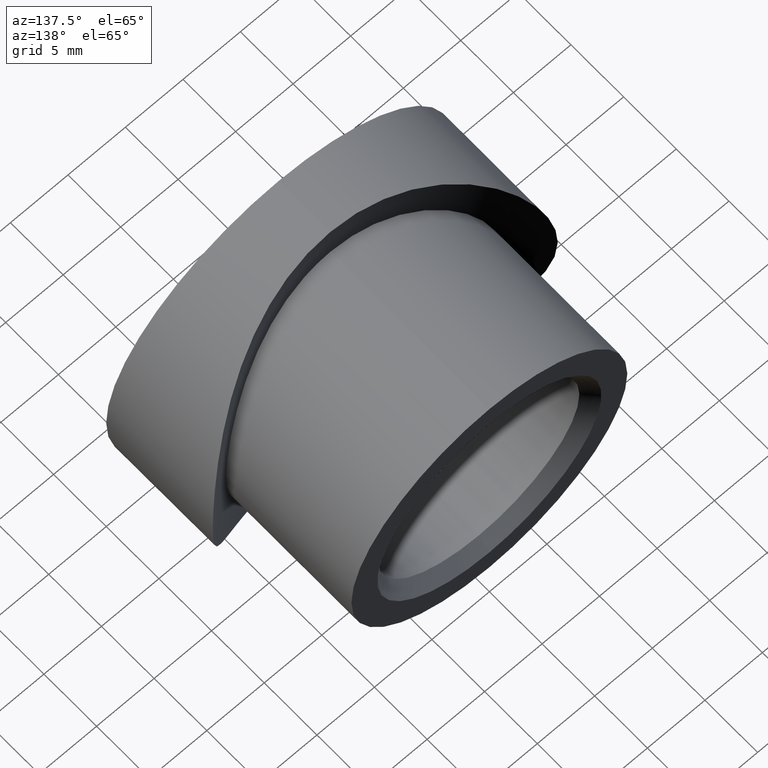
[diagram: clean part render]
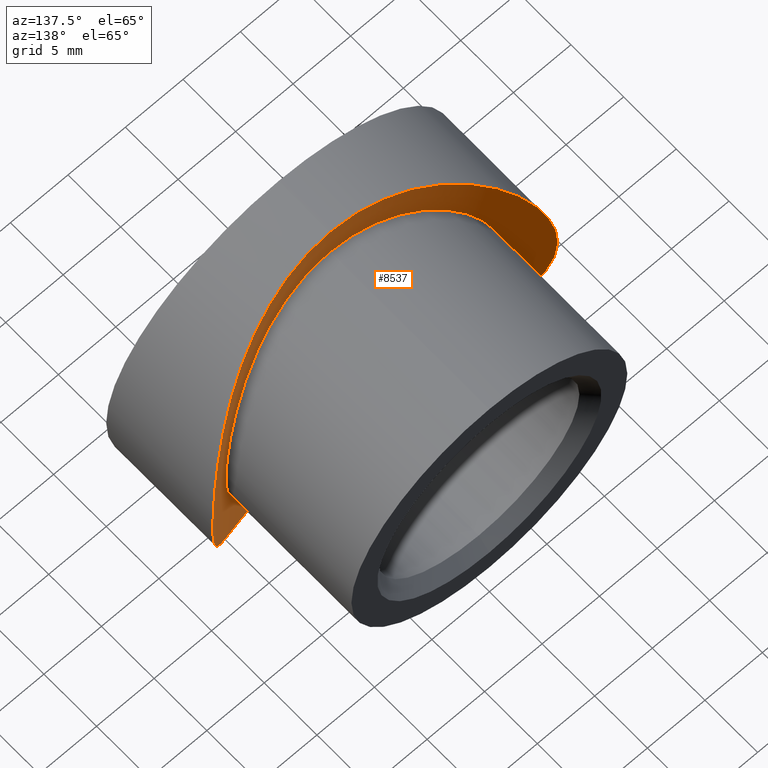
[diagram: same view with one face highlighted and labeled with its STEP entity id]
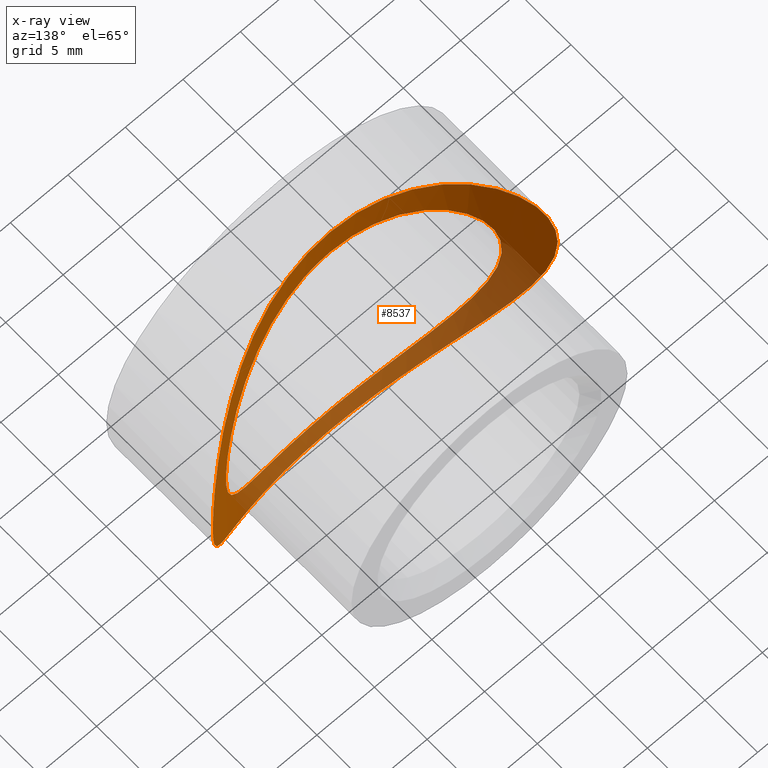
[diagram: x-ray of the same camera — body ghosted, the highlighted face saturated]
A machine part, auxiliary view. The second image highlights one B-rep face of the part: STEP entity #8537.
The next image is the same camera in x-ray: the body ghosted, the highlighted face saturated — about 40% of this face is hidden behind the body in this view.
In plain terms, the highlighted cylindrical surface (partial cylindrical patch) has radius 24.15 mm, axis along (-0, -0, 1).
Its self-contained STEP definition (entity closure, byte-faithful):
#94 = CARTESIAN_POINT ( 'NONE',  ( -6.744688744990575900, 5.856562353914894100, -13.40709561244847800 ) ) ;
#112 = CARTESIAN_POINT ( 'NONE',  ( -1.597987281760672600, 4.949587880154465000, 11.89994046274387100 ) ) ;
#144 = CARTESIAN_POINT ( 'NONE',  ( -12.71327052175960000, 8.514851390136264800, -7.975061641544691300 ) ) ;
#195 = CARTESIAN_POINT ( 'NONE',  ( -3.485658601142082300, 5.147729191260269800, 14.59802432777151700 ) ) ;
#212 = CARTESIAN_POINT ( 'NONE',  ( -7.336366037461537800, 6.039126275310406000, 9.504162439233546400 ) ) ;
#248 = CARTESIAN_POINT ( 'NONE',  ( -4.928206650321829600, 5.403229236940585900, 14.17607781400972500 ) ) ;
#269 = CARTESIAN_POINT ( 'NONE',  ( -0.4029986096603255200, 4.900000000000000400, -12.00000000000000000 ) ) ;
#280 = CARTESIAN_POINT ( 'NONE',  ( 1.469576328433560100E-015, 4.899999999999999500, 12.00000000000000200 ) ) ;
#303 = CARTESIAN_POINT ( 'NONE',  ( -2.033231823859746400, 4.980389711994480000, -14.87028230816697200 ) ) ;
#322 = CARTESIAN_POINT ( 'NONE',  ( -6.388584441627299900, 5.757937995087689700, -10.16542668537225500 ) ) ;
#368 = CARTESIAN_POINT ( 'NONE',  ( -3.173156425770984300, 5.096594142273728400, -11.60009782483969700 ) ) ;
#379 = CARTESIAN_POINT ( 'NONE',  ( 9.511215124419269500, 6.850209605392914000, 7.327178173921439000 ) ) ;
#387 = AXIS2_PLACEMENT_3D ( 'NONE', #4567, #13894, #10395 ) ;
#426 = CARTESIAN_POINT ( 'NONE',  ( -9.750295055930559200, 6.954522809434593000, -7.005791511683672600 ) ) ;
#438 = CARTESIAN_POINT ( 'NONE',  ( 9.744868043958595300, 6.952115860486928000, 7.013428422355984200 ) ) ;
#473 = CARTESIAN_POINT ( 'NONE',  ( -10.38117370468958700, 7.244127783562809100, -6.031878810636256600 ) ) ;
#584 = VERTEX_POINT ( 'NONE', #6381 ) ;
#753 = B_SPLINE_CURVE_WITH_KNOTS ( 'NONE', 3,
 ( #8017, #11515, #7191, #195, #2592, #248, #10688, #12974, #3744, #7136, #6025, #9416, #9577, #3695, #11753, #10534, #8361, #4815, #12868, #12919, #5975, #2488, #2645, #9521, #9369, #8309, #12824, #1362, #14093, #1463, #1255, #3590, #10585, #9469, #2535, #3788, #144, #11855, #14142, #1413, #7241, #10642, #4918, #13028, #6077, #94, #10742, #11802, #14199, #2432, #303, #3641, #8415, #11703 ),
 .UNSPECIFIED., .F., .F.,
 ( 4, 2, 2, 2, 2, 2, 2, 2, 2, 2, 2, 2, 2, 2, 2, 2, 2, 2, 2, 2, 2, 2, 2, 2, 2, 2, 4 ),
 ( 0.04823133613402224400, 0.05123907936154566800, 0.05274295097530738000, 0.05424682258906909200, 0.05575069420283080400, 0.05725456581659251600, 0.06026230904411594700, 0.06176618065787765900, 0.06327005227163937100, 0.06627779549916279500, 0.06778166711292450700, 0.06928553872668621900, 0.07078941034044793100, 0.07229328195420964300, 0.07379715356797135500, 0.07530102518173306700, 0.07830876840925649100, 0.07981264002301821600, 0.08131651163677992800, 0.08282038325054164000, 0.08432425486430336600, 0.08733199809182677600, 0.08883586970558848800, 0.09033974131935020000, 0.09334748454687362400, 0.09485135616063533600, 0.09635522777439704800 ),
 .UNSPECIFIED. ) ;
#778 = ORIENTED_EDGE ( 'NONE', *, *, #827, .T. ) ;
#827 = EDGE_CURVE ( 'NONE', #11139, #3585, #7814, .T. ) ;
#930 = CARTESIAN_POINT ( 'NONE',  ( 11.89314875098584200, 8.028681126301114200, -9.153293849760350700 ) ) ;
#981 = CARTESIAN_POINT ( 'NONE',  ( 1.222112702060550400E-014, 4.899999999999907100, 15.00000000000015100 ) ) ;
#1031 = CARTESIAN_POINT ( 'NONE',  ( 7.611943889563319100, 6.115317021625976700, 12.96068623717132500 ) ) ;
#1255 = CARTESIAN_POINT ( 'NONE',  ( -14.79921885837197200, 9.965408949920226100, -2.497288964207005500 ) ) ;
#1274 = CARTESIAN_POINT ( 'NONE',  ( -6.061450746239370500, 5.663486575907725800, 10.38554288857154800 ) ) ;
#1330 = CARTESIAN_POINT ( 'NONE',  ( -3.159490436073063300, 5.094819677769123700, 11.60375039764326900 ) ) ;
#1362 = CARTESIAN_POINT ( 'NONE',  ( -15.00023440368899200, 10.12341901121318500, -0.4959438168509846500 ) ) ;
#1390 = CARTESIAN_POINT ( 'NONE',  ( 5.349329140117618000, 5.497253109161964500, 10.74879796148525600 ) ) ;
#1413 = CARTESIAN_POINT ( 'NONE',  ( -11.28620759498197200, 7.696685894561030100, -9.891952616093760800 ) ) ;
#1429 = CARTESIAN_POINT ( 'NONE',  ( -12.01961960681775200, 8.103635390930211500, 0.01288308736875729300 ) ) ;
#1439 = CARTESIAN_POINT ( 'NONE',  ( 12.00037361126469900, 8.092578083628321700, 0.3878042795076023800 ) ) ;
#1463 = CARTESIAN_POINT ( 'NONE',  ( -14.87499014758268600, 10.02472121436572600, -1.996722211770934000 ) ) ;
#1483 = CARTESIAN_POINT ( 'NONE',  ( -11.98119769396536100, 8.081560901904870400, -0.7812603315106770900 ) ) ;
#1547 = CARTESIAN_POINT ( 'NONE',  ( 7.941312410763457000, 6.235611238807719800, 9.029322067873247100 ) ) ;
#1588 = CARTESIAN_POINT ( 'NONE',  ( -2.005412626524837500, 4.980229775313260300, -11.83791020448459200 ) ) ;
#1599 = CARTESIAN_POINT ( 'NONE',  ( 10.76616626339371200, 7.429939224219004300, -5.356963226628274700 ) ) ;
#2111 = CARTESIAN_POINT ( 'NONE',  ( 14.89852862568829300, 10.04158801482705800, 2.009330287242183700 ) ) ;
#2155 = CARTESIAN_POINT ( 'NONE',  ( 13.42231916061414100, 8.971648020473159200, 6.713996362699869100 ) ) ;
#2199 = CARTESIAN_POINT ( 'NONE',  ( 14.87090736712013400, 10.02152495562622600, -2.027268464795401100 ) ) ;
#2245 = CARTESIAN_POINT ( 'NONE',  ( 14.01164665161111200, 9.378964592168157900, 5.376954847648511800 ) ) ;
#2291 = CARTESIAN_POINT ( 'NONE',  ( 14.96720302296172300, 10.09727960926601400, -1.023461465578098500 ) ) ;
#2432 = CARTESIAN_POINT ( 'NONE',  ( -2.535832971342855100, 5.028429145201487300, -14.79255617182440500 ) ) ;
#2488 = CARTESIAN_POINT ( 'NONE',  ( -14.47078127602599700, 9.714747681503618900, 3.979875842798211500 ) ) ;
#2504 = CARTESIAN_POINT ( 'NONE',  ( -9.041720089229789500, 6.648917849742083800, 7.927323164564759500 ) ) ;
#2535 = CARTESIAN_POINT ( 'NONE',  ( -13.42273384894690700, 8.971943897409945000, -6.713006942368406400 ) ) ;
#2565 = CARTESIAN_POINT ( 'NONE',  ( 11.99923655113536600, 8.091927021958492000, -0.8097889024103044300 ) ) ;
#2592 = CARTESIAN_POINT ( 'NONE',  ( -3.976327511474934400, 5.224681369802305600, 14.47194605084688100 ) ) ;
#2624 = CARTESIAN_POINT ( 'NONE',  ( 1.586923334527960500, 4.939310469328523500, 11.92148726625026400 ) ) ;
#2645 = CARTESIAN_POINT ( 'NONE',  ( -14.59425517936051100, 9.808219587489608300, 3.500841206114691000 ) ) ;
#2662 = CARTESIAN_POINT ( 'NONE',  ( -11.90275154499578700, 8.036931636467134200, -1.576062037349237300 ) ) ;
#2674 = CARTESIAN_POINT ( 'NONE',  ( 6.055443380373456600, 5.661790438376709900, -10.38946513811419700 ) ) ;
#2723 = CARTESIAN_POINT ( 'NONE',  ( 6.371616782538867900, 5.753232505498998800, 10.17623855465536300 ) ) ;
#2771 = CARTESIAN_POINT ( 'NONE',  ( 5.370474512368126300, 5.493138150436571700, -10.75990886961875500 ) ) ;
#2852 = ORIENTED_EDGE ( 'NONE', *, *, #5036, .F. ) ;
#3266 = CARTESIAN_POINT ( 'NONE',  ( 14.47089296862482000, 9.714809570445881400, -3.980171359325524300 ) ) ;
#3315 = CARTESIAN_POINT ( 'NONE',  ( 4.928079506304274400, 5.389301552908297500, 14.20226136320453500 ) ) ;
#3362 = CARTESIAN_POINT ( 'NONE',  ( 8.804195061771746800, 6.558037711476377000, 12.15386435226836400 ) ) ;
#3409 = CARTESIAN_POINT ( 'NONE',  ( 10.96432575738571600, 7.529169538230799000, -10.24745775056937400 ) ) ;
#3425 = CARTESIAN_POINT ( 'NONE',  ( 0.0000000000000000000, 4.900000000000001200, -12.00000000000000200 ) ) ;
#3519 = CARTESIAN_POINT ( 'NONE',  ( 0.0000000000000000000, 4.900000000000001200, -12.00000000000000200 ) ) ;
#3585 = VERTEX_POINT ( 'NONE', #3425 ) ;
#3590 = CARTESIAN_POINT ( 'NONE',  ( -14.49818271009884000, 9.734483554103404000, -3.976936265463844900 ) ) ;
#3641 = CARTESIAN_POINT ( 'NONE',  ( -1.020036110269032300, 4.916212535124859800, -14.97393915801339400 ) ) ;
#3659 = CARTESIAN_POINT ( 'NONE',  ( -10.17771655510028200, 7.148109054055363600, 6.369004624476389200 ) ) ;
#3695 = CARTESIAN_POINT ( 'NONE',  ( -10.96414786535049200, 7.529048003044865200, 10.24775029796657400 ) ) ;
#3711 = CARTESIAN_POINT ( 'NONE',  ( -11.84292389325379300, 8.003011079973095600, -1.975806802146381000 ) ) ;
#3714 = EDGE_CURVE ( 'NONE', #3585, #11139, #6516, .T. ) ;
#3723 = CARTESIAN_POINT ( 'NONE',  ( 3.908563168963962800, 5.215329864471469200, 11.35250684472202900 ) ) ;
#3744 = CARTESIAN_POINT ( 'NONE',  ( -6.737429021927332500, 5.854481343773116500, 13.41068191017854100 ) ) ;
#3762 = CARTESIAN_POINT ( 'NONE',  ( -9.519983183278661400, 6.853982907463104900, -7.315717045139877000 ) ) ;
#3788 = CARTESIAN_POINT ( 'NONE',  ( -12.96206115092047100, 8.671504188036420800, -7.564338497697579400 ) ) ;
#3817 = CARTESIAN_POINT ( 'NONE',  ( 9.749678832403541100, 6.954236089927022100, -7.006776653119817200 ) ) ;
#3862 = CARTESIAN_POINT ( 'NONE',  ( -11.89979510481016500, 8.035255643513654200, 1.597923332017239700 ) ) ;
#3877 = CARTESIAN_POINT ( 'NONE',  ( 4.997732220871909300, 5.419936980570561500, 10.91673897094033500 ) ) ;
#3932 = CARTESIAN_POINT ( 'NONE',  ( 11.21801358761711900, 7.662915412849909700, -4.278787083235023700 ) ) ;
#3954 = ORIENTED_EDGE ( 'NONE', *, *, #6210, .F. ) ;
#4279 = CARTESIAN_POINT ( 'NONE',  ( 6.754753451404509300, 5.845124422494262000, -13.42905950627906900 ) ) ;
#4329 = CARTESIAN_POINT ( 'NONE',  ( 3.972500863618061200, 5.223975264601221200, -14.47311497642460800 ) ) ;
#4430 = CARTESIAN_POINT ( 'NONE',  ( 9.926400847760037400, 7.030669090166981900, 11.25594815856525200 ) ) ;
#4482 = CARTESIAN_POINT ( 'NONE',  ( 13.43804253960673200, 8.978774724222853700, -6.735145777484569300 ) ) ;
#4567 = CARTESIAN_POINT ( 'NONE',  ( 0.0000000000000000000, 29.05000000000000100, -15.00000000000000000 ) ) ;
#4636 = CARTESIAN_POINT ( 'NONE',  ( -8.224588622719297200, 6.341778737521456900, 8.746709705305931900 ) ) ;
#4779 = CARTESIAN_POINT ( 'NONE',  ( -1.993145447368263000, 4.979218806877209900, 11.83996292233409300 ) ) ;
#4815 = CARTESIAN_POINT ( 'NONE',  ( -12.97648002478590200, 8.673088720240599500, 7.584081200192917600 ) ) ;
#4885 = CARTESIAN_POINT ( 'NONE',  ( -0.8059582403476559500, 4.910121796274361300, -11.97966844759394600 ) ) ;
#4893 = CARTESIAN_POINT ( 'NONE',  ( 3.152921246890148400, 5.103654681222316500, 11.58513553292109300 ) ) ;
#4918 = CARTESIAN_POINT ( 'NONE',  ( -9.215445849584970300, 6.711245031261310800, -11.87440116141603700 ) ) ;
#4937 = CARTESIAN_POINT ( 'NONE',  ( -11.37599973653983400, 7.744475439024530100, -3.899324614457516900 ) ) ;
#4991 = CARTESIAN_POINT ( 'NONE',  ( -1.606925428590629400, 4.950185082809428000, -11.89873167469588600 ) ) ;
#5004 = CARTESIAN_POINT ( 'NONE',  ( 11.58553185154099700, 7.860013152362117100, -3.151637576994936300 ) ) ;
#5036 = EDGE_CURVE ( 'NONE', #584, #11982, #753, .T. ) ;
#5055 = CARTESIAN_POINT ( 'NONE',  ( 11.91960751131797700, 8.045768796835604400, -1.597373318145374600 ) ) ;
#5104 = CARTESIAN_POINT ( 'NONE',  ( 11.58770435618816400, 7.861206388115086000, 3.143451971971456400 ) ) ;
#5423 = CARTESIAN_POINT ( 'NONE',  ( 0.0000000000000000000, 4.900000000000001200, -15.00000000000000000 ) ) ;
#5442 = CARTESIAN_POINT ( 'NONE',  ( 9.219907222075349300, 6.712703733593458300, -11.87184478876065800 ) ) ;
#5548 = CARTESIAN_POINT ( 'NONE',  ( 1.020410066884456200, 4.916315600083316400, 14.97377186976757500 ) ) ;
#5596 = CARTESIAN_POINT ( 'NONE',  ( 2.519994592966653600, 5.026815959168583700, 14.79517073002317500 ) ) ;
#5734 = CARTESIAN_POINT ( 'NONE',  ( 9.956077827172045100, 7.035019949760725300, -11.25983272319786500 ) ) ;
#5785 = CARTESIAN_POINT ( 'NONE',  ( -11.36911074626455200, 7.740843134397510800, 3.917737262702988900 ) ) ;
#5975 = CARTESIAN_POINT ( 'NONE',  ( -14.17830773658370800, 9.499268998698930500, 4.921230759617338400 ) ) ;
#6003 = CARTESIAN_POINT ( 'NONE',  ( 8.766522609646170100, 6.545447381832249600, -8.203423875248395400 ) ) ;
#6025 = CARTESIAN_POINT ( 'NONE',  ( -8.015686471919275700, 6.265060353888828500, 12.68788340814168700 ) ) ;
#6053 = CARTESIAN_POINT ( 'NONE',  ( 2.763430744729996400, 5.055391348313135000, 11.68432696377246300 ) ) ;
#6077 = CARTESIAN_POINT ( 'NONE',  ( -7.606955501343958500, 6.124891404614606600, -12.93735935300208900 ) ) ;
#6095 = CARTESIAN_POINT ( 'NONE',  ( -7.351600150706261200, 6.036457689915176900, -9.515966513079938200 ) ) ;
#6154 = CARTESIAN_POINT ( 'NONE',  ( 1.598811799452214200, 4.940350858426851800, -11.91937000018181600 ) ) ;
#6210 = EDGE_CURVE ( 'NONE', #11982, #584, #6323, .T. ) ;
#6211 = CARTESIAN_POINT ( 'NONE',  ( 8.758104522131141300, 6.542164152956274800, 8.212422306001331100 ) ) ;
#6323 = B_SPLINE_CURVE_WITH_KNOTS ( 'NONE', 3,
 ( #7726, #6458, #14673, #8889, #4329, #7772, #11232, #4279, #12390, #5442, #5734, #3409, #13711, #930, #13798, #10207, #4482, #12537, #15004, #3266, #14861, #9136, #2199, #10396, #2291, #10303, #6765, #12591, #2111, #11383, #12681, #9227, #2245, #13849, #2155, #9044, #11564, #14820, #12638, #6898, #4430, #7972, #3362, #1031, #11473, #3315, #14908, #5596, #6709, #5548, #7874, #981 ),
 .UNSPECIFIED., .F., .F.,
 ( 4, 2, 2, 2, 2, 2, 2, 2, 2, 2, 2, 2, 2, 2, 2, 2, 2, 2, 2, 2, 2, 2, 2, 2, 2, 4 ),
 ( 0.0000000000000000000, 0.003014458508376398500, 0.004521687762564596500, 0.006028917016752795300, 0.009043375525129192900, 0.01205783403350559100, 0.01356506328769378600, 0.01507229254188198300, 0.01808675105025837200, 0.01959398030444656200, 0.02110120955863475900, 0.02260843881282295300, 0.02336205343991704800, 0.02411566806701114300, 0.02713012657538753000, 0.02863735582957572400, 0.03014458508376391700, 0.03165181433795211100, 0.03315904359214030100, 0.03617350210051669500, 0.03768073135470489200, 0.03918796060889307600, 0.04220241911726947000, 0.04521687762564585700, 0.04672410687983404700, 0.04823133613402224400 ),
 .UNSPECIFIED. ) ;
#6381 = CARTESIAN_POINT ( 'NONE',  ( 1.222112702060550400E-014, 4.899999999999907100, 15.00000000000015100 ) ) ;
#6458 = CARTESIAN_POINT ( 'NONE',  ( 1.020897057064380300, 4.899999999999999500, -14.99999999999999800 ) ) ;
#6516 = B_SPLINE_CURVE_WITH_KNOTS ( 'NONE', 3,
 ( #3519, #8539, #6154, #14124, #7270, #14286, #11993, #2771, #2674, #7379, #8441, #9604, #10773, #6003, #7322, #10876, #3817, #12046, #1599, #3932, #14231, #5004, #13055, #5055, #2565, #1439, #11886, #13005, #8391, #13160, #5104, #10668, #9497, #7167, #8336, #438, #379, #8492, #6211, #1547, #9553, #2723, #10826, #1390, #3877, #14330, #3723, #4893, #6053, #2624, #14173, #280 ),
 .UNSPECIFIED., .F., .F.,
 ( 4, 2, 2, 2, 2, 2, 2, 2, 2, 2, 2, 2, 2, 2, 2, 2, 2, 2, 2, 2, 2, 2, 2, 2, 2, 4 ),
 ( 0.0000000000000000000, 0.002385169967551233500, 0.003577754951326849600, 0.004770339935102465300, 0.007155509902653696600, 0.008348094886429310500, 0.009540679870204928800, 0.01073326485398054500, 0.01192584983775616200, 0.01431101980530739500, 0.01550360478908301100, 0.01669618977285862800, 0.01908135974040986100, 0.02027394472418547800, 0.02146652970796109400, 0.02265911469173671100, 0.02385169967551232700, 0.02623686964306356400, 0.02742945462683918000, 0.02862203961061479700, 0.03100720957816602300, 0.03219979456194164300, 0.03339237954571725600, 0.03458496452949287600, 0.03577754951326849600, 0.03816271948081972200 ),
 .UNSPECIFIED. ) ;
#6544 = FACE_OUTER_BOUND ( 'NONE', #10194, .T. ) ;
#6709 = CARTESIAN_POINT ( 'NONE',  ( 2.025301263461530200, 4.979808596282368600, 14.87122172199254200 ) ) ;
#6765 = CARTESIAN_POINT ( 'NONE',  ( 14.99990711246975100, 10.12315962367116400, -0.2595284546987068300 ) ) ;
#6898 = CARTESIAN_POINT ( 'NONE',  ( 10.28374643159908800, 7.195722192913067700, 10.93045986100665300 ) ) ;
#7026 = EDGE_LOOP ( 'NONE', ( #10563, #778 ) ) ;
#7136 = CARTESIAN_POINT ( 'NONE',  ( -7.596956278631650700, 6.121605139970282200, 12.94316786656411200 ) ) ;
#7167 = CARTESIAN_POINT ( 'NONE',  ( 10.76352074279404300, 7.428565946283793400, 5.363501695269508900 ) ) ;
#7191 = CARTESIAN_POINT ( 'NONE',  ( -2.009586333470878100, 4.963333033387198300, 14.89866045656544100 ) ) ;
#7209 = CARTESIAN_POINT ( 'NONE',  ( -7.945415716193893200, 6.236959893389441200, -9.026113286194966900 ) ) ;
#7241 = CARTESIAN_POINT ( 'NONE',  ( -10.96226445139809200, 7.528088428463292700, -10.24976243348721300 ) ) ;
#7270 = CARTESIAN_POINT ( 'NONE',  ( 3.148105635941314000, 5.102974147547606700, -11.58654851264131700 ) ) ;
#7322 = CARTESIAN_POINT ( 'NONE',  ( 9.025155045419659000, 6.648219499810383400, -7.918085950734806900 ) ) ;
#7379 = CARTESIAN_POINT ( 'NONE',  ( 7.026683750094949900, 5.942387061100830300, -9.735402435102585600 ) ) ;
#7726 = CARTESIAN_POINT ( 'NONE',  ( 0.0000000000000000000, 4.900000000000001200, -15.00000000000000000 ) ) ;
#7772 = CARTESIAN_POINT ( 'NONE',  ( 4.930916701446882700, 5.403725911115024900, -14.17525593122201000 ) ) ;
#7814 = B_SPLINE_CURVE_WITH_KNOTS ( 'NONE', 3,
 ( #14006, #11671, #12940, #112, #4779, #1330, #10408, #8219, #1274, #9386, #212, #9433, #4636, #2504, #10608, #3659, #8324, #9236, #12742, #5785, #9286, #10707, #3862, #8431, #1429, #1483, #2662, #3711, #9489, #4937, #14162, #14317, #473, #8380, #426, #3762, #11927, #9592, #7209, #6095, #322, #10861, #14368, #11822, #10658, #368, #1588, #4991, #4885, #269, #9543 ),
 .UNSPECIFIED., .F., .F.,
 ( 4, 2, 2, 2, 2, 2, 2, 2, 2, 2, 2, 2, 1, 2, 2, 2, 2, 2, 2, 2, 2, 2, 2, 2, 2, 4 ),
 ( 0.03816271948081972200, 0.03935327597601428300, 0.04054383247120883800, 0.04292494546159795300, 0.04530605845198706900, 0.04649661494718163000, 0.04768717144237619200, 0.05006828443276530700, 0.05125884092795986200, 0.05244939742315442300, 0.05483051041354354600, 0.05602106690873810700, 0.05721162340393266100, 0.05840217989912722300, 0.05959273639432177700, 0.06197384938471090000, 0.06316440587990546100, 0.06435496237510002200, 0.06554551887029458300, 0.06673607536548914500, 0.06911718835587826700, 0.07030774485107282900, 0.07149830134626739000, 0.07387941433665651300, 0.07506997083185107400, 0.07626052732704563500 ),
 .UNSPECIFIED. ) ;
#7874 = CARTESIAN_POINT ( 'NONE',  ( 0.5070600984365715200, 4.900000000000002100, 15.00000000000000000 ) ) ;
#7972 = CARTESIAN_POINT ( 'NONE',  ( 9.187432657735298500, 6.712241637381834100, 11.86679754180961100 ) ) ;
#8017 = CARTESIAN_POINT ( 'NONE',  ( 1.222112702060550400E-014, 4.899999999999907100, 15.00000000000015100 ) ) ;
#8219 = CARTESIAN_POINT ( 'NONE',  ( -5.374661220655474900, 5.493898376392538200, 10.75829770492072300 ) ) ;
#8309 = CARTESIAN_POINT ( 'NONE',  ( -14.97429468774816500, 10.10277575698035000, 1.014649882401019100 ) ) ;
#8324 = CARTESIAN_POINT ( 'NONE',  ( -10.38067320485661300, 7.243889066120176200, 6.032742471785922200 ) ) ;
#8336 = CARTESIAN_POINT ( 'NONE',  ( 10.39410807507841000, 7.246083749160446200, 6.046903591284920900 ) ) ;
#8361 = CARTESIAN_POINT ( 'NONE',  ( -12.17879475689336400, 8.193448989497806400, 8.769480522851020900 ) ) ;
#8380 = CARTESIAN_POINT ( 'NONE',  ( -10.18088961748989400, 7.149592411258953300, -6.363871068726123100 ) ) ;
#8391 = CARTESIAN_POINT ( 'NONE',  ( 11.84146100028736000, 8.002189246251516500, 1.984096342542630300 ) ) ;
#8415 = CARTESIAN_POINT ( 'NONE',  ( -0.5093114071485151900, 4.900000000000002100, -15.00000000000000200 ) ) ;
#8431 = CARTESIAN_POINT ( 'NONE',  ( -11.97953600345401300, 8.080609902839619000, 0.8057292680659250400 ) ) ;
#8441 = CARTESIAN_POINT ( 'NONE',  ( 7.340677198572846500, 6.040522430769566000, -9.500758651626885200 ) ) ;
#8492 = CARTESIAN_POINT ( 'NONE',  ( 9.017664108451137700, 6.645187107797061000, 7.926694592484606600 ) ) ;
#8537 = ADVANCED_FACE ( 'NONE', ( #12350, #6544 ), #10880, .F. ) ;
#8539 = CARTESIAN_POINT ( 'NONE',  ( 0.8073704898561963100, 4.900000000000001200, -12.00000000000000500 ) ) ;
#8889 = CARTESIAN_POINT ( 'NONE',  ( 3.488189386041556300, 5.148152638592754300, -14.59732947798906900 ) ) ;
#9044 = CARTESIAN_POINT ( 'NONE',  ( 12.95934725534938400, 8.669759849834271400, 7.569129244702121900 ) ) ;
#9136 = CARTESIAN_POINT ( 'NONE',  ( 14.79490587664209900, 9.962068196484860700, -2.521730566629615500 ) ) ;
#9227 = CARTESIAN_POINT ( 'NONE',  ( 14.18012084077625600, 9.500578308523902400, 4.916249110399725500 ) ) ;
#9236 = CARTESIAN_POINT ( 'NONE',  ( -10.75077585048227200, 7.423958548560288600, 5.345388342263350800 ) ) ;
#9286 = CARTESIAN_POINT ( 'NONE',  ( -11.60128383079354100, 7.868267875084242700, 3.169763212369989700 ) ) ;
#9369 = CARTESIAN_POINT ( 'NONE',  ( -14.87108500914834300, 10.02166222284568800, 2.027275617685650100 ) ) ;
#9386 = CARTESIAN_POINT ( 'NONE',  ( -7.025652006377627300, 5.942108756825830600, 9.736035406937633100 ) ) ;
#9416 = CARTESIAN_POINT ( 'NONE',  ( -9.215978019358871600, 6.711310102898874400, 11.87435089280762000 ) ) ;
#9433 = CARTESIAN_POINT ( 'NONE',  ( -7.936598275267044800, 6.239191508711110500, 9.008983190348683200 ) ) ;
#9469 = CARTESIAN_POINT ( 'NONE',  ( -13.63526412194472900, 9.116217602719022000, -6.270487353749960100 ) ) ;
#9489 = CARTESIAN_POINT ( 'NONE',  ( -11.60728713515643300, 7.871573686258463100, -3.147303735782415000 ) ) ;
#9497 = CARTESIAN_POINT ( 'NONE',  ( 11.22010789929935400, 7.663999881744616400, 4.273676524025829900 ) ) ;
#9521 = CARTESIAN_POINT ( 'NONE',  ( -14.79437495859599500, 9.961656246074481300, 2.524805532152846900 ) ) ;
#9543 = CARTESIAN_POINT ( 'NONE',  ( 0.0000000000000000000, 4.900000000000001200, -12.00000000000000200 ) ) ;
#9553 = CARTESIAN_POINT ( 'NONE',  ( 7.346417259913832400, 6.034566962389829900, 9.520686930173459600 ) ) ;
#9577 = CARTESIAN_POINT ( 'NONE',  ( -9.951083396812441300, 7.032641114253695300, 11.26461883778846100 ) ) ;
#9592 = CARTESIAN_POINT ( 'NONE',  ( -8.766510454888214500, 6.545416535812616800, -8.203559132104022200 ) ) ;
#9604 = CARTESIAN_POINT ( 'NONE',  ( 7.937949349629632500, 6.239683038912408700, -9.007714294582445500 ) ) ;
#10194 = EDGE_LOOP ( 'NONE', ( #3954, #2852 ) ) ;
#10207 = CARTESIAN_POINT ( 'NONE',  ( 12.98166962616679500, 8.676323365743483500, -7.575703696470494500 ) ) ;
#10303 = CARTESIAN_POINT ( 'NONE',  ( 14.99329018769270200, 10.11791015530677900, -0.5156443054233903500 ) ) ;
#10395 = DIRECTION ( 'NONE',  ( 1.000000000000000000, 0.0000000000000000000, 0.0000000000000000000 ) ) ;
#10396 = CARTESIAN_POINT ( 'NONE',  ( 14.94778012596015400, 10.08193654020246700, -1.275654790061196500 ) ) ;
#10408 = CARTESIAN_POINT ( 'NONE',  ( -3.913283783200097500, 5.207535425827239300, 11.37163852646852800 ) ) ;
#10534 = CARTESIAN_POINT ( 'NONE',  ( -11.89448356734734000, 8.029454798731043400, 9.151484360792549600 ) ) ;
#10563 = ORIENTED_EDGE ( 'NONE', *, *, #3714, .T. ) ;
#10585 = CARTESIAN_POINT ( 'NONE',  ( -14.20478885789113300, 9.513856397638232200, -4.917492330208339100 ) ) ;
#10608 = CARTESIAN_POINT ( 'NONE',  ( -9.529606474560655000, 6.854638647319393200, 7.333971445967571300 ) ) ;
#10642 = CARTESIAN_POINT ( 'NONE',  ( -9.949133706984953900, 7.031759451258056800, -11.26633151748089800 ) ) ;
#10658 = CARTESIAN_POINT ( 'NONE',  ( -3.922935266074549300, 5.209369219776708500, -11.36772718674656200 ) ) ;
#10668 = CARTESIAN_POINT ( 'NONE',  ( 11.35577146285338700, 7.736006440441017600, 3.899055915213072200 ) ) ;
#10688 = CARTESIAN_POINT ( 'NONE',  ( -5.391967744364475100, 5.505011332370740400, 14.00599439859665900 ) ) ;
#10707 = CARTESIAN_POINT ( 'NONE',  ( -11.83950650765308200, 8.001084321542352400, 1.996342152919131600 ) ) ;
#10742 = CARTESIAN_POINT ( 'NONE',  ( -6.300443195653847400, 5.731688517721157600, -13.62149104401984400 ) ) ;
#10773 = CARTESIAN_POINT ( 'NONE',  ( 8.222919284769554700, 6.341182205022573900, -8.748238701510025800 ) ) ;
#10826 = CARTESIAN_POINT ( 'NONE',  ( 6.035709086953019700, 5.663734283326358600, 10.37893037281847000 ) ) ;
#10861 = CARTESIAN_POINT ( 'NONE',  ( -6.055440034666682800, 5.668788881270526900, -10.36756931492669800 ) ) ;
#10876 = CARTESIAN_POINT ( 'NONE',  ( 9.516176979892245300, 6.852352177315981200, -7.320647813169047800 ) ) ;
#10880 = CYLINDRICAL_SURFACE ( 'NONE', #387, 24.14999999999999900 ) ;
#11139 = VERTEX_POINT ( 'NONE', #12054 ) ;
#11232 = CARTESIAN_POINT ( 'NONE',  ( 5.396962400938819300, 5.506149252255941200, -14.00408441119818700 ) ) ;
#11383 = CARTESIAN_POINT ( 'NONE',  ( 14.59889689854865000, 9.811742420435352900, 3.481824263079212700 ) ) ;
#11473 = CARTESIAN_POINT ( 'NONE',  ( 6.760966412895796500, 5.846466825322512100, 13.42682124007478700 ) ) ;
#11515 = CARTESIAN_POINT ( 'NONE',  ( -1.011861050853361600, 4.900000000000000400, 15.00000000000000700 ) ) ;
#11564 = CARTESIAN_POINT ( 'NONE',  ( 12.70836064793590500, 8.511799917785809900, 7.982935439192484500 ) ) ;
#11671 = CARTESIAN_POINT ( 'NONE',  ( -0.3975691026940951200, 4.899999999999998600, 12.00000000000000200 ) ) ;
#11703 = CARTESIAN_POINT ( 'NONE',  ( 0.0000000000000000000, 4.900000000000001200, -15.00000000000000000 ) ) ;
#11753 = CARTESIAN_POINT ( 'NONE',  ( -11.28779623140135200, 7.697536064171692300, 9.890099169274696700 ) ) ;
#11802 = CARTESIAN_POINT ( 'NONE',  ( -4.945377266651774100, 5.393443127212359300, -14.19526873949127900 ) ) ;
#11822 = CARTESIAN_POINT ( 'NONE',  ( -5.007215507650046000, 5.421924705233939400, -10.91244489028357000 ) ) ;
#11855 = CARTESIAN_POINT ( 'NONE',  ( -12.17926107986054000, 8.193701782501660700, -8.768948345980460200 ) ) ;
#11886 = CARTESIAN_POINT ( 'NONE',  ( 11.98051358484336500, 8.081168535575463000, 0.7925347031848608600 ) ) ;
#11927 = CARTESIAN_POINT ( 'NONE',  ( -9.028782070125316700, 6.649679714069217900, -7.913968032829189700 ) ) ;
#11982 = VERTEX_POINT ( 'NONE', #5423 ) ;
#11993 = CARTESIAN_POINT ( 'NONE',  ( 4.283560795706505600, 5.280062766567105800, -11.21630579790468800 ) ) ;
#12046 = CARTESIAN_POINT ( 'NONE',  ( 10.39933258985101000, 7.248567429995160800, -6.038088049420347900 ) ) ;
#12054 = CARTESIAN_POINT ( 'NONE',  ( 1.469576328433560100E-015, 4.899999999999999500, 12.00000000000000200 ) ) ;
#12350 = FACE_BOUND ( 'NONE', #7026, .T. ) ;
#12390 = CARTESIAN_POINT ( 'NONE',  ( 7.608340146011927100, 6.113682643033560500, -12.96381687986544100 ) ) ;
#12537 = CARTESIAN_POINT ( 'NONE',  ( 14.00526734478379400, 9.374428103789421500, -5.393355225292954600 ) ) ;
#12591 = CARTESIAN_POINT ( 'NONE',  ( 15.00036664440244900, 10.12352381573543300, 1.010987120491091900 ) ) ;
#12638 = CARTESIAN_POINT ( 'NONE',  ( 11.30042382763841900, 7.693677332677807200, 9.910701039066824000 ) ) ;
#12681 = CARTESIAN_POINT ( 'NONE',  ( 14.47355374176807700, 9.716817188721234900, 3.970084943508712400 ) ) ;
#12742 = CARTESIAN_POINT ( 'NONE',  ( -10.91829703147728700, 7.508368764103431100, 4.994209250475416100 ) ) ;
#12824 = CARTESIAN_POINT ( 'NONE',  ( -14.99976229252201100, 10.12304484977691200, 0.5100231395952243800 ) ) ;
#12868 = CARTESIAN_POINT ( 'NONE',  ( -13.43539385888184900, 8.976889274600161200, 6.741982475664241500 ) ) ;
#12919 = CARTESIAN_POINT ( 'NONE',  ( -14.00857885471449100, 9.376757027485110600, 5.385234668295064300 ) ) ;
#12940 = CARTESIAN_POINT ( 'NONE',  ( -0.7966580533406540900, 4.909810198651834800, 11.98029558548390700 ) ) ;
#12974 = CARTESIAN_POINT ( 'NONE',  ( -6.296580876322170900, 5.730633010671341200, 13.62329859166721500 ) ) ;
#13005 = CARTESIAN_POINT ( 'NONE',  ( 11.90087284212297700, 8.035866081713560800, 1.590610765708718700 ) ) ;
#13028 = CARTESIAN_POINT ( 'NONE',  ( -8.020915733963070300, 6.266938534765381900, -12.68449337087932300 ) ) ;
#13055 = CARTESIAN_POINT ( 'NONE',  ( 11.68426684726801800, 7.914520914897700300, -2.763162938948989100 ) ) ;
#13160 = CARTESIAN_POINT ( 'NONE',  ( 11.68487830717825900, 7.914859709635903700, 2.760517318230860000 ) ) ;
#13711 = CARTESIAN_POINT ( 'NONE',  ( 11.28446284282526900, 7.695756095059209700, -9.893971591935800400 ) ) ;
#13798 = CARTESIAN_POINT ( 'NONE',  ( 12.18106281440355200, 8.194756170650922700, -8.766439807953377200 ) ) ;
#13849 = CARTESIAN_POINT ( 'NONE',  ( 13.63274864982423700, 9.114503012051731200, 6.275830588374040200 ) ) ;
#13894 = DIRECTION ( 'NONE',  ( -0.0000000000000000000, -0.0000000000000000000, 1.000000000000000000 ) ) ;
#14006 = CARTESIAN_POINT ( 'NONE',  ( 1.469576328433560100E-015, 4.899999999999999500, 12.00000000000000200 ) ) ;
#14093 = CARTESIAN_POINT ( 'NONE',  ( -14.97523476638894900, 10.10352517080490700, -0.9972838979935164700 ) ) ;
#14124 = CARTESIAN_POINT ( 'NONE',  ( 2.763598696944905300, 5.055474739699453900, -11.68415240122577000 ) ) ;
#14142 = CARTESIAN_POINT ( 'NONE',  ( -11.89403955749684300, 8.029192970600108800, -9.152105301009875400 ) ) ;
#14162 = CARTESIAN_POINT ( 'NONE',  ( -10.92150182310470400, 7.509982366907369300, -4.987516771058297500 ) ) ;
#14173 = CARTESIAN_POINT ( 'NONE',  ( 0.7964929741677530000, 4.899999999999997700, 11.99999999999999600 ) ) ;
#14199 = CARTESIAN_POINT ( 'NONE',  ( -4.005489980454407300, 5.214022764335864800, -14.48988329273216300 ) ) ;
#14231 = CARTESIAN_POINT ( 'NONE',  ( 11.35209124121861500, 7.734040829998172700, -3.909909481157467500 ) ) ;
#14286 = CARTESIAN_POINT ( 'NONE',  ( 3.909561532719972200, 5.215446408733705600, -11.35226867867002200 ) ) ;
#14317 = CARTESIAN_POINT ( 'NONE',  ( -10.75118674387007200, 7.424163271564304400, -5.344559202738206900 ) ) ;
#14330 = CARTESIAN_POINT ( 'NONE',  ( 4.277348215146622200, 5.278977769138113500, 11.21859212903163800 ) ) ;
#14368 = CARTESIAN_POINT ( 'NONE',  ( -5.363209908283767600, 5.500363763494572600, -10.74201224133265400 ) ) ;
#14673 = CARTESIAN_POINT ( 'NONE',  ( 2.019961454319787000, 4.964416227820502800, -14.89690330405982600 ) ) ;
#14820 = CARTESIAN_POINT ( 'NONE',  ( 11.90508340198713300, 8.029013793544182300, 9.175387922535764000 ) ) ;
#14861 = CARTESIAN_POINT ( 'NONE',  ( 14.59489939498745900, 9.808708668996811000, -3.498181899153874700 ) ) ;
#14908 = CARTESIAN_POINT ( 'NONE',  ( 3.982023638281515500, 5.210306952959290200, 14.49597483650651600 ) ) ;
#15004 = CARTESIAN_POINT ( 'NONE',  ( 14.17470311981784700, 9.496633954187258200, -4.932169788644399600 ) ) ;